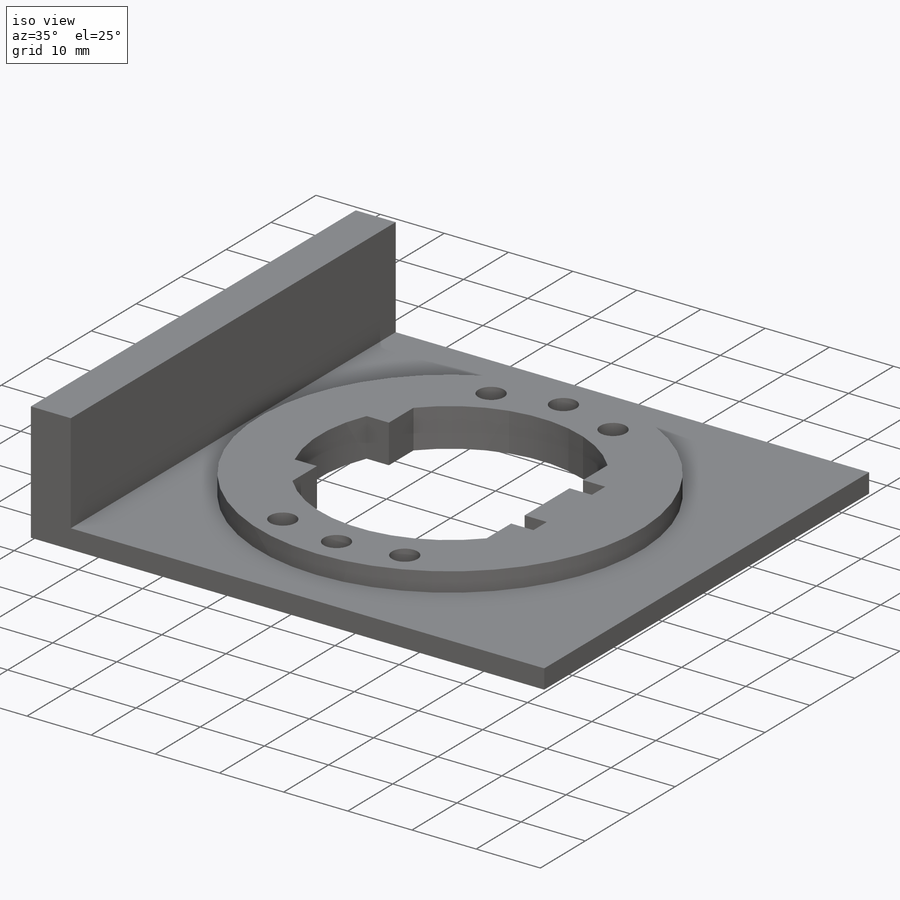
[diagram: iso view]
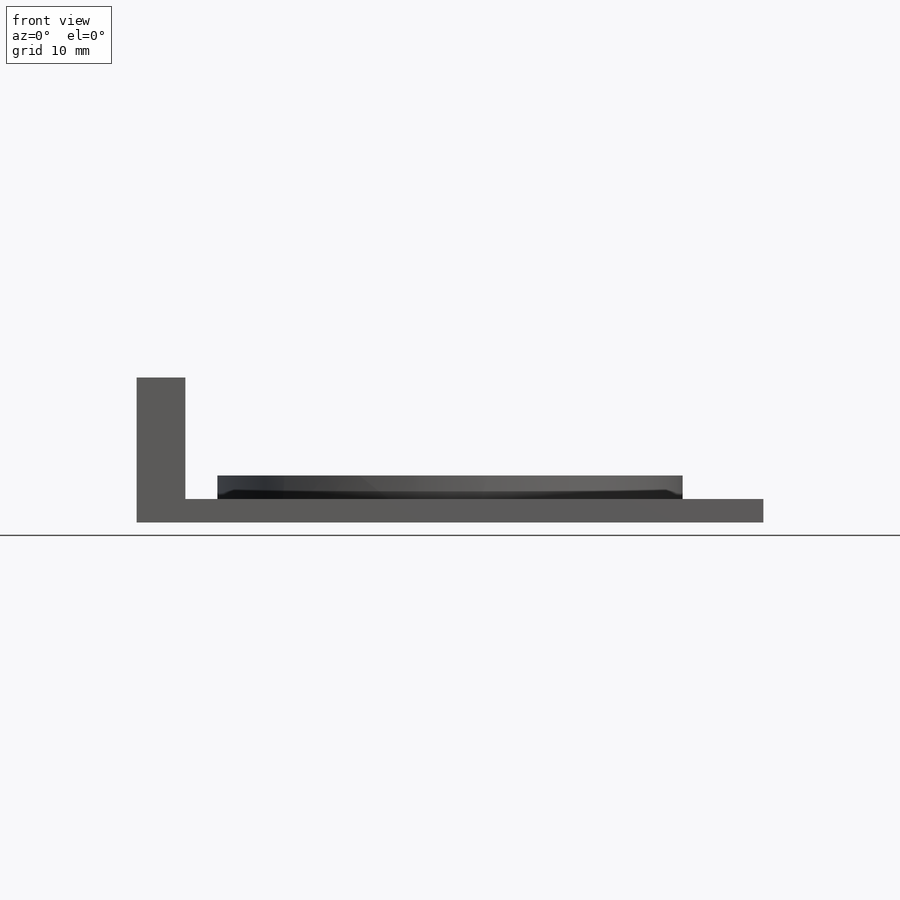
[diagram: front view]
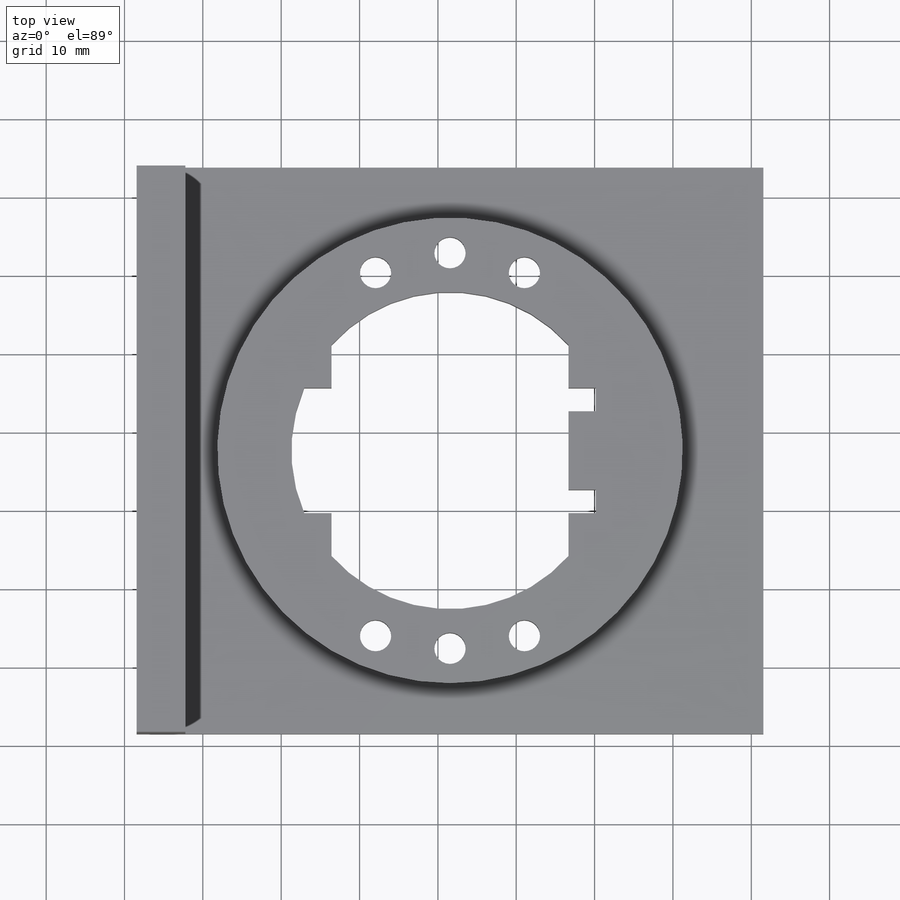
[diagram: top view]
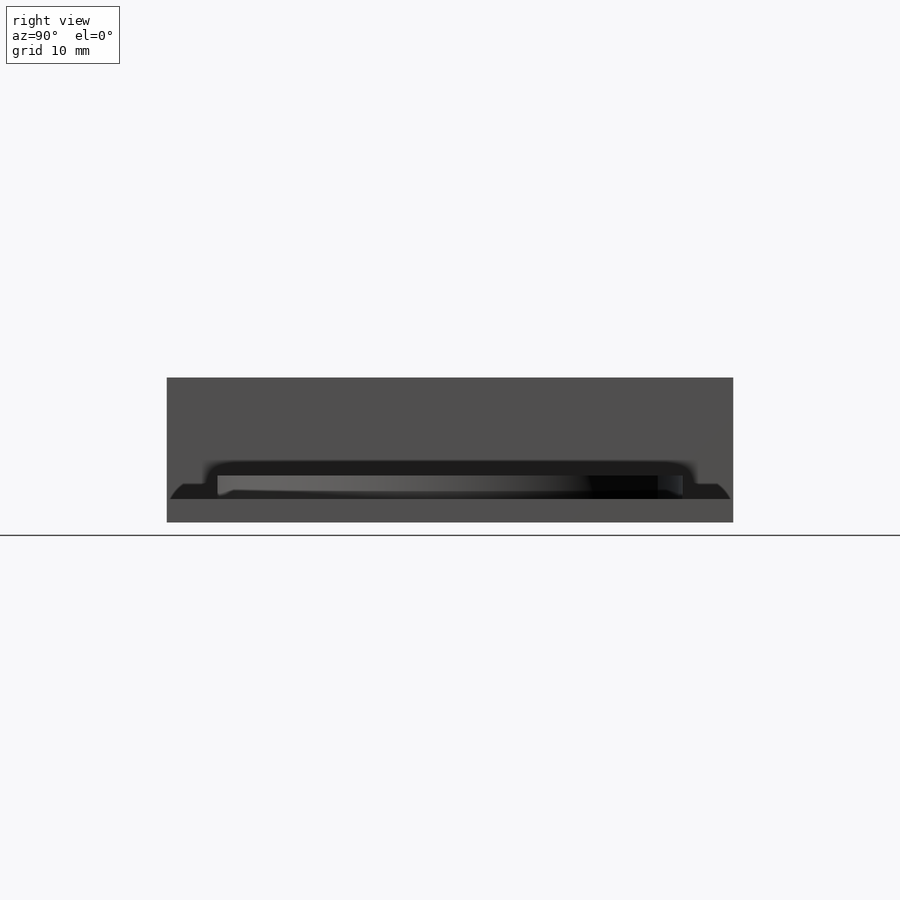
[diagram: right view]
SOLIDWORKS PART (.sldprt)
format: sldprt  version: not decoded by parser v0  size: 276,480 bytes
history: native  units: mm
features: sketch x6, cut_extrude x4, extrude x2, material x1 (+11 scaffold rows collapsed)
feature tree (24):
  scaffold x11  (default folders/planes/origin — collapsed)
  material  "Material <not specified>"
  sketch  "Sketch1"  dims[D1=72.3mm D2=80.0mm]
  extrude  "Boss-Extrude1"  Depth=6mm
  sketch  "Sketch2"  dims[D1=59.41mm D2=36.15mm D3=40.0mm]
  cut_extrude  "Cut-Extrude1"  Depth=3mm
  sketch  "Sketch3"  dims[c1.D1=~10.724747mm c1.D2=40.5mm c2.D1=26.93mm c2.D3=16.0mm c2.D4=3.0mm c2.D5=3.0mm]
  cut_extrude  "Cut-Extrude3"  [1 undecoded]
  sketch  "Sketch5"  dims[D1=4.0mm D2=4.0mm D3=5.0mm D4=5.0mm D5=0.0mm D6=0.0mm]
  cut_extrude  "Cut-Extrude4"  [1 undecoded]
  sketch  "Sketch6"  dims[c1.D1=4.0mm c1.D2=4.0mm c1.D3=4.0mm c1.D4=4.0mm c1.D10=4.0mm c1.D5=19.0mm c1.D6=15.0mm c1.D7=0.0mm c1.D8=~14.999994mm c1.D9=19.0mm c2.D10=46.35mm c2.D11=0.0mm c2.D6=0.0mm c2.D7=~23.026177mm c2.D5=19.0mm c3.D7=9.5mm]
  cut_extrude  "Cut-Extrude5"  [1 undecoded]
  sketch  "Sketch8"
  extrude  "Boss-Extrude2"  Depth=15.5mm
decode coverage: 8 of 12 modeling features carry decoded parameters
note: ~ marks probable driven/reference dimensions
note: 3 parameter values undecoded
summary: no parameter record found for 3 features
note: suppression state not decoded; provenance and decode notes live in map.json
